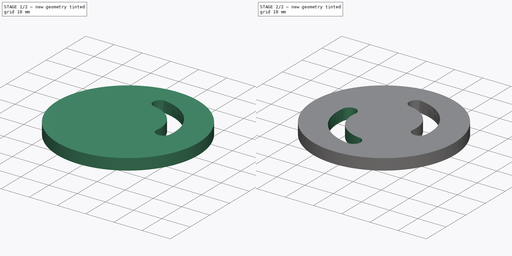
[diagram: build sequence overview — one tinted view per stage of 2, left to right]
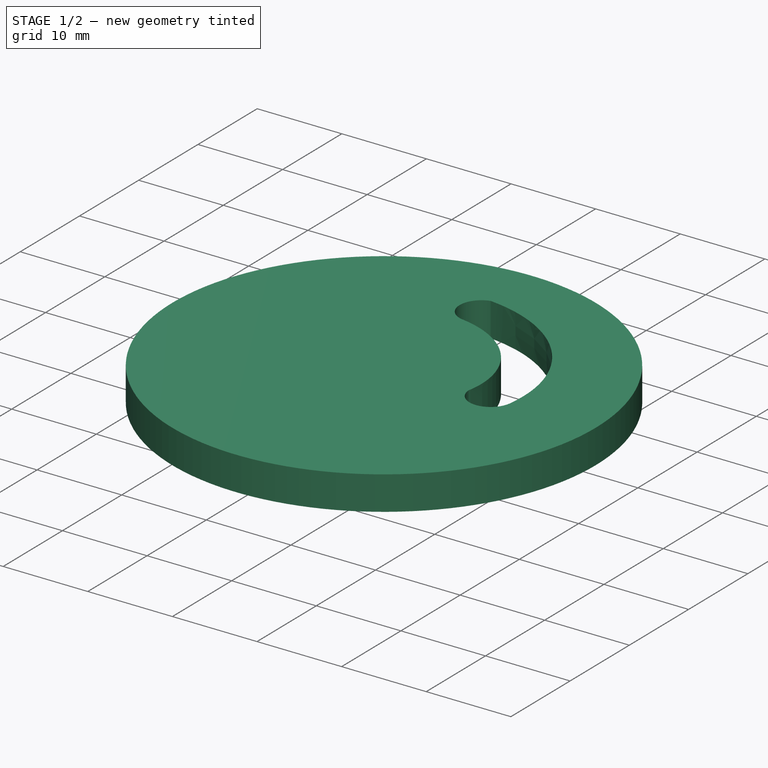
[diagram: stage 1 of 2 — iso view after this stage's code; geometry added in this stage tinted green]
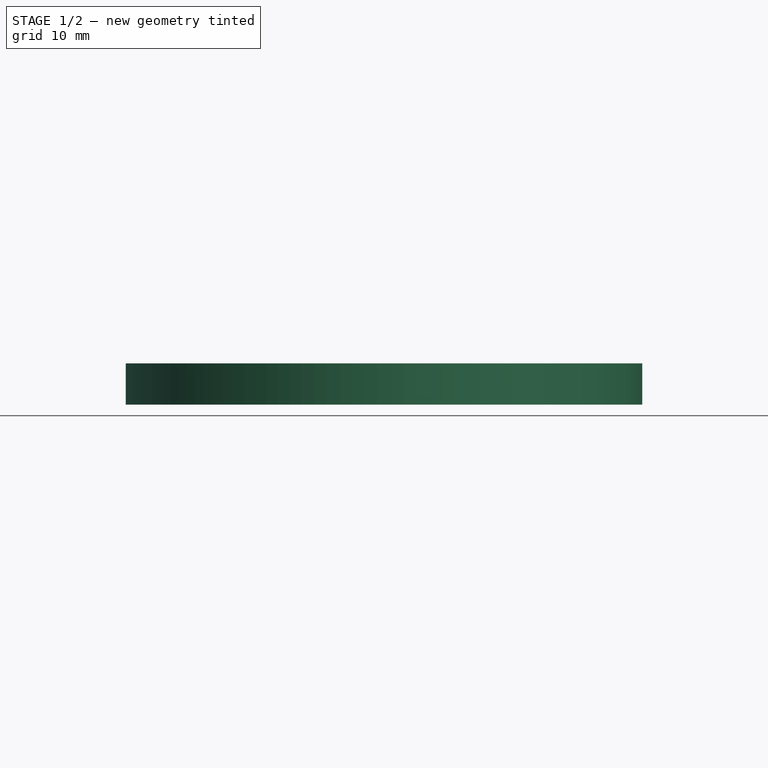
[diagram: stage 1 of 2 — front view after this stage's code; geometry added in this stage tinted green]
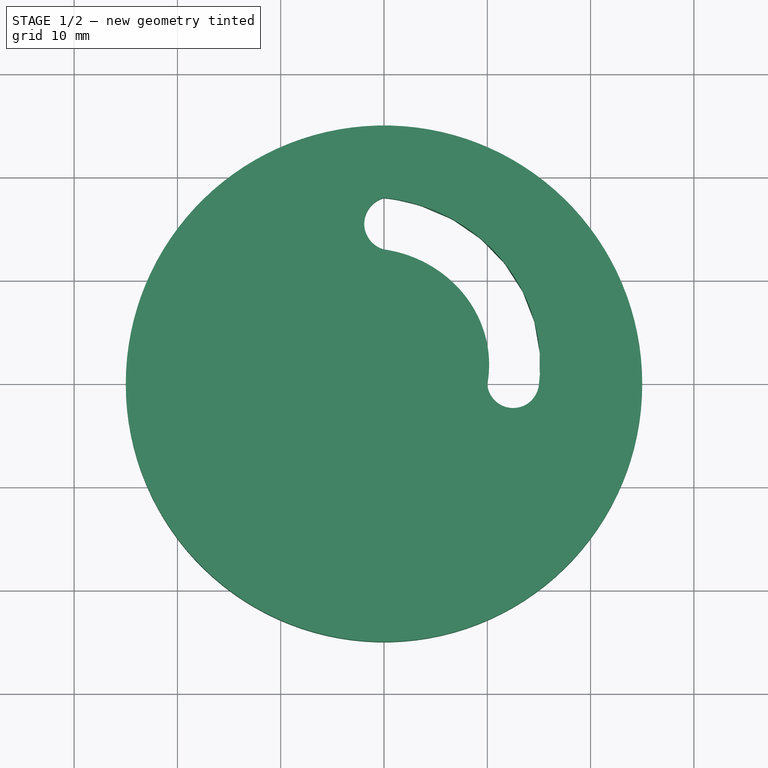
[diagram: stage 1 of 2 — top view after this stage's code; geometry added in this stage tinted green]
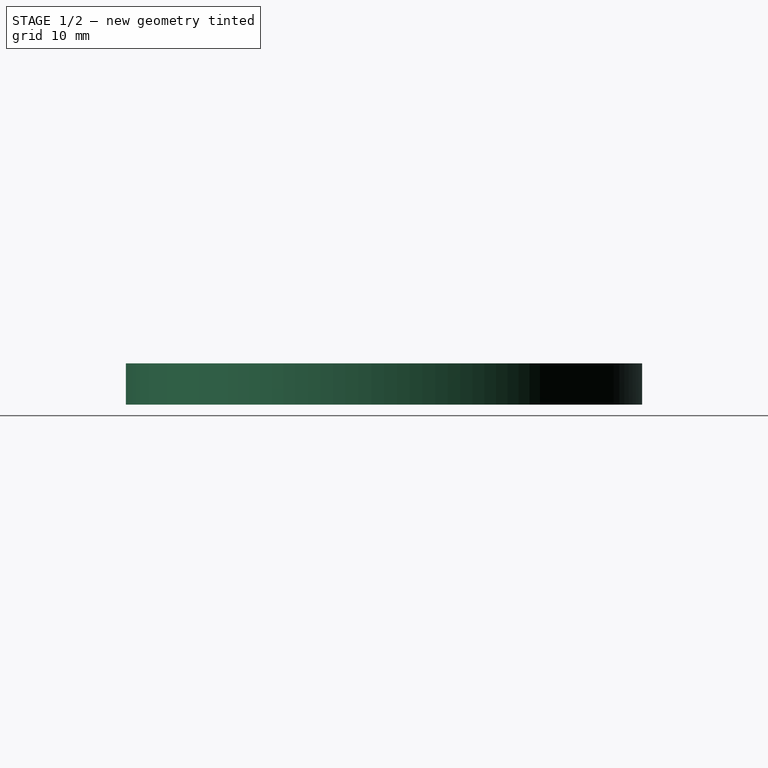
[diagram: stage 1 of 2 — right view after this stage's code; geometry added in this stage tinted green]
FCSTD DOCUMENT  (FreeCAD 0.21R33771 (Git))
Label: CammaRotazioneHalfNut
License: All rights reserved
LicenseURL: http://en.wikipedia.org/wiki/All_rights_reserved
objects: Sketcher::SketchObject×7, Part::Spiral×2, PartDesign::Pocket×2, PartDesign::CoordinateSystem×1, PartDesign::Pad×1, PartDesign::Body×1
note: 17 computed .brp shape members not serialized (recipe doc carries the construction recipe); baked Part::Feature solids carry a one-line shape summary decoded from their .brp

FEATURE [Sketcher::SketchObject] Sketch
  FullyConstrained = true
  MapMode = 5
  Support = -> [XY_Plane]
  sketch-geometry (1):
    g0: Circle CenterX=0 CenterY=0 CenterZ=0 NormalX=0 NormalY=0 NormalZ=1 AngleXU=0 Radius=25
  constraints (2):
    c: Coincident(g0,g-1)
    c: Radius(g0) = 25
FEATURE [Part::Spiral] Spiral  label="Spirale"
  AttacherType = Attacher::AttachEngine3D
  Growth = 16
  Placement = pos=(0,0,0) rot=(0,0,1;3.14159rad)
  Radius = 15
  Rotations = 0.25
  SegmentLength = 1
FEATURE [Part::Spiral] Spiral001  label="Spirale001"
  AttacherType = Attacher::AttachEngine3D
  Growth = 12
  Placement = pos=(0,0,0) rot=(0,0,1;3.14159rad)
  Radius = 10
  Rotations = 0.25
  SegmentLength = 1
FEATURE [Sketcher::SketchObject] Sketch001
  FullyConstrained = false
  Placement = pos=(0,0,0) rot=(0,0,1;3.14159rad)
  sketch-geometry (1):
    g0: BSplineCurve PolesCount=9 KnotsCount=2 Degree=8 IsPeriodic=0
FEATURE [Sketcher::SketchObject] Sketch002
  FullyConstrained = false
  Placement = pos=(0,0,0) rot=(0,0,1;3.14159rad)
  sketch-geometry (1):
    g0: BSplineCurve PolesCount=9 KnotsCount=2 Degree=8 IsPeriodic=0
FEATURE [Sketcher::SketchObject] Sketch003
  FullyConstrained = false
  Placement = pos=(0,0,0) rot=(0,0,1;3.14159rad)
  sketch-geometry (4):
    g0: BSplineCurve PolesCount=9 KnotsCount=2 Degree=8 IsPeriodic=0
    g1: BSplineCurve PolesCount=9 KnotsCount=2 Degree=8 IsPeriodic=0
    g2: ArcOfCircle CenterX=-12.5 CenterY=-0.146281 CenterZ=0 NormalX=0 NormalY=0 NormalZ=1 AngleXU=0 Radius=2.50428 StartAngle=0.0584458 EndAngle=3.08315
    g3: ArcOfCircle CenterX=-0.674462 CenterY=-15.5 CenterZ=0 NormalX=0 NormalY=0 NormalZ=1 AngleXU=0 Radius=2.58938 StartAngle=4.9759 EndAngle=7.59047
  constraints (4):
    c: Coincident(g2,g0)
    c: Coincident(g3,g0)
    c: Coincident(g2,g1)
    c: Coincident(g3,g1)
FEATURE [Sketcher::SketchObject] Sketch004
  FullyConstrained = false
  Placement = pos=(0,0,0) rot=(0,0,1;3.14159rad)
  sketch-geometry (2):
    g0: BSplineCurve PolesCount=9 KnotsCount=2 Degree=8 IsPeriodic=0
    g1: BSplineCurve PolesCount=9 KnotsCount=2 Degree=8 IsPeriodic=0
FEATURE [Sketcher::SketchObject] Sketch005
  FullyConstrained = false
  Placement = pos=(0,0,0) rot=(0,0,1;3.14159rad)
  sketch-geometry (4):
    g0: BSplineCurve PolesCount=9 KnotsCount=2 Degree=8 IsPeriodic=0
    g1: BSplineCurve PolesCount=9 KnotsCount=2 Degree=8 IsPeriodic=0
    g2: ArcOfCircle CenterX=-0.054569 CenterY=15.5 CenterZ=0 NormalX=0 NormalY=0 NormalZ=1 AngleXU=0 Radius=2.5006 StartAngle=1.54897 EndAngle=4.73421
    g3: ArcOfCircle CenterX=12.5 CenterY=-0.199279 CenterZ=0 NormalX=0 NormalY=0 NormalZ=1 AngleXU=0 Radius=2.50793 StartAngle=3.06205 EndAngle=6.36273
  constraints (4):
    c: Coincident(g3,g0)
    c: Coincident(g3,g1)
    c: Coincident(g2,g1)
    c: Coincident(g2,g0)
FEATURE [PartDesign::CoordinateSystem] LCS_CammaHalfNut
  AttacherType = Attacher::AttachEngine3D
FEATURE [PartDesign::Pad] Pad
  Direction = (0,0,1)
  Length = 4
  Length2 = 10
  Profile = -> Sketch
  ReferenceAxis = -> Sketch [N_Axis]
  Type = 0
FEATURE [PartDesign::Pocket] Pocket
  BaseFeature = -> Pad
  Direction = (0,0,-1)
  Length = 5
  Length2 = 5
  Profile = -> Sketch003
  ReferenceAxis = -> Sketch003 [N_Axis]
  Reversed = true
  Type = 0
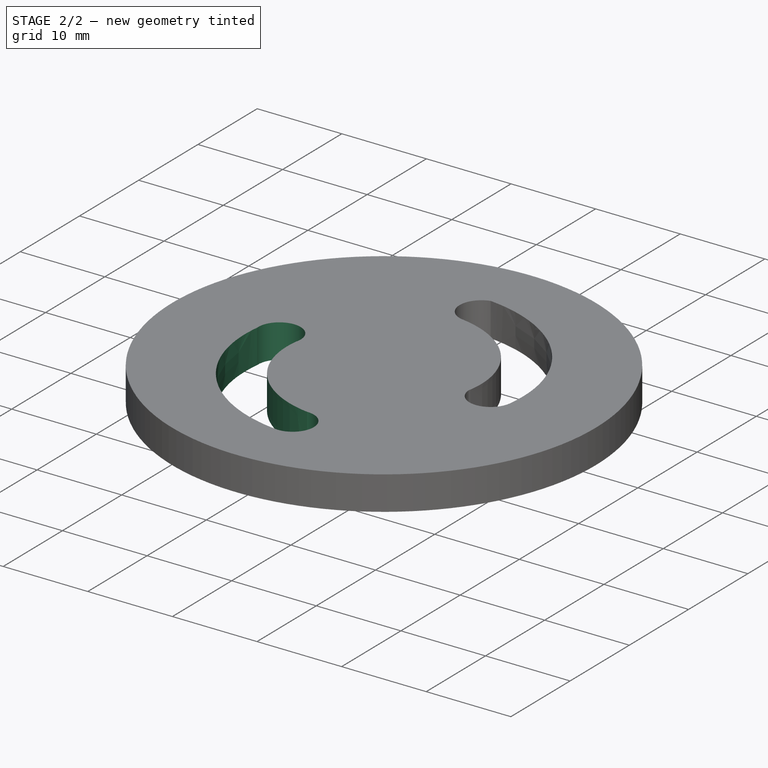
[diagram: stage 2 of 2 — iso view after this stage's code; geometry added in this stage tinted green]
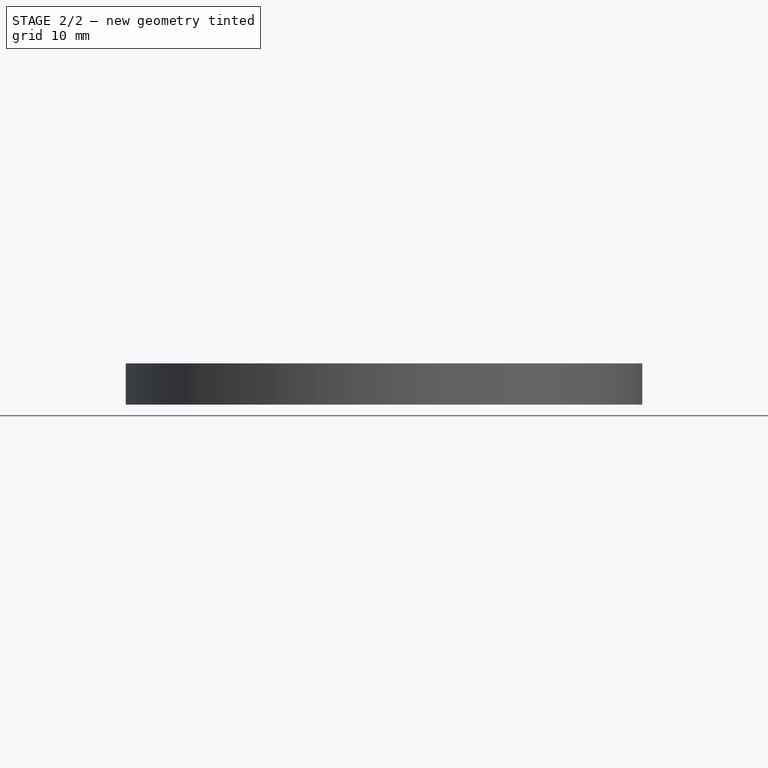
[diagram: stage 2 of 2 — front view after this stage's code; geometry added in this stage tinted green]
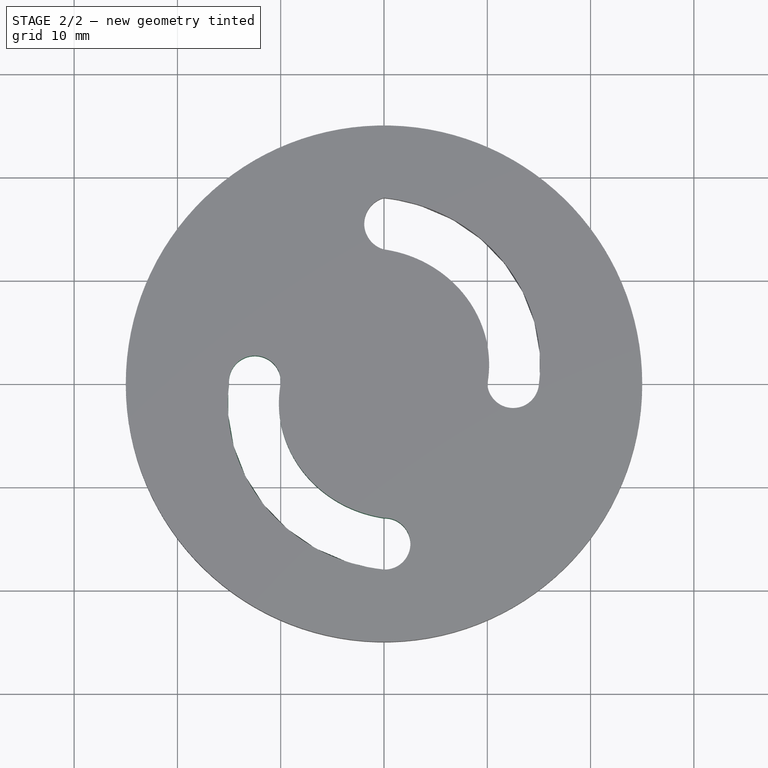
[diagram: stage 2 of 2 — top view after this stage's code; geometry added in this stage tinted green]
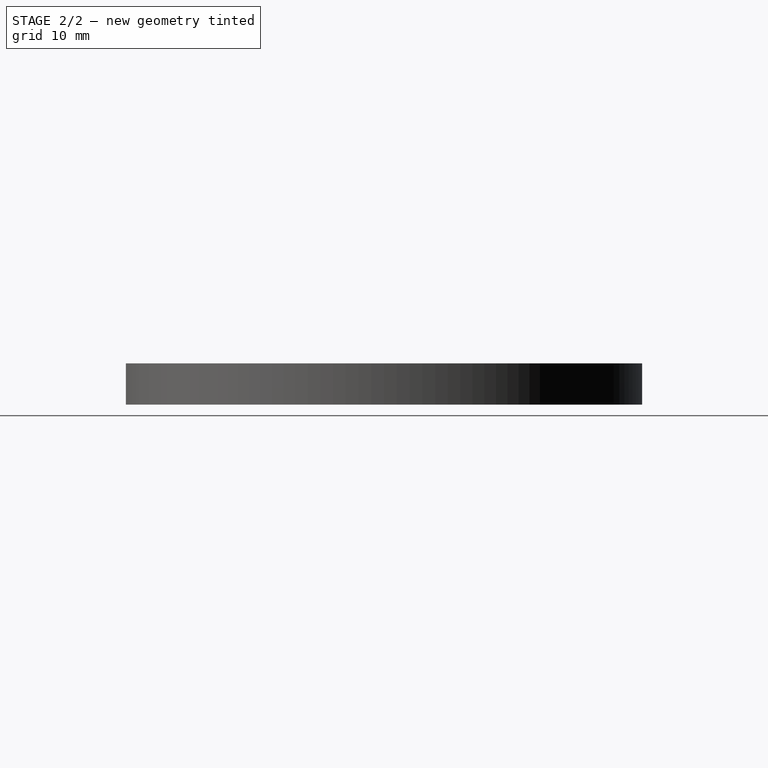
[diagram: stage 2 of 2 — right view after this stage's code; geometry added in this stage tinted green]
FEATURE [PartDesign::Pocket] Pocket001
  BaseFeature = -> Pocket
  Direction = (0,0,-1)
  Length = 5
  Length2 = 5
  Profile = -> Sketch005
  ReferenceAxis = -> Sketch005 [N_Axis]
  Reversed = true
  Type = 0
FEATURE [PartDesign::Body] Body
  Group = -> [Sketch,Pad,Sketch003,Pocket,Sketch005,Pocket001,LCS_CammaHalfNut]
  Origin = -> Origin
  Tip = -> Pocket001
FEATURE [Sketcher::SketchObject] Sketch006
  FullyConstrained = true
  MapMode = 5
  Support = -> [XY_Plane001]
  sketch-geometry (8):
    g0: LineSegment StartX=0 StartY=0 StartZ=0 EndX=50 EndY=0 EndZ=0
    g1: LineSegment StartX=50 StartY=0 StartZ=0 EndX=50 EndY=100 EndZ=0
    g2: LineSegment StartX=50 StartY=100 StartZ=0 EndX=0 EndY=100 EndZ=0
    g3: LineSegment StartX=0 StartY=100 StartZ=0 EndX=0 EndY=0 EndZ=0
    g4: LineSegment StartX=10.25 StartY=80 StartZ=0 EndX=39.25 EndY=80 EndZ=0
    g5: LineSegment StartX=39.25 StartY=80 StartZ=0 EndX=39.25 EndY=20 EndZ=0
    g6: LineSegment StartX=39.25 StartY=20 StartZ=0 EndX=10.25 EndY=20 EndZ=0
    g7: LineSegment StartX=10.25 StartY=20 StartZ=0 EndX=10.25 EndY=80 EndZ=0
  constraints (23):
    c: Coincident(g0,g1)
    c: Coincident(g1,g2)
    c: Coincident(g2,g3)
    c: Coincident(g3,g0)
    c: Horizontal(g0)
    c: Horizontal(g2)
    c: Vertical(g1)
    c: Vertical(g3)
    c: Coincident(g0,g-1)
    c: DistanceX(g0,g0) = 50
    c: DistanceY(g3,g3) = 100
    c: Coincident(g4,g5)
    c: Coincident(g5,g6)
    c: Coincident(g6,g7)
    c: Coincident(g7,g4)
    c: Horizontal(g4)
    c: Horizontal(g6)
    c: Vertical(g5)
    c: Vertical(g7)
    c: DistanceX(g4,g4) = 29
    c: DistanceY(g5,g5) = 60
    c: DistanceX(g0,g6) = 10.25
    c: DistanceY(g0,g6) = 20
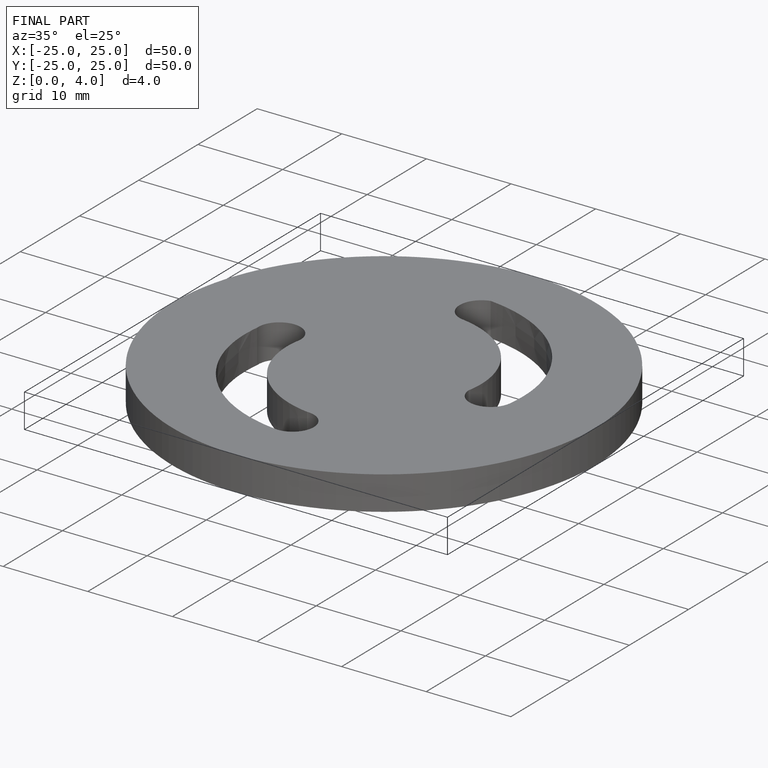
[diagram: finished part — iso view with bounding-box wireframe]
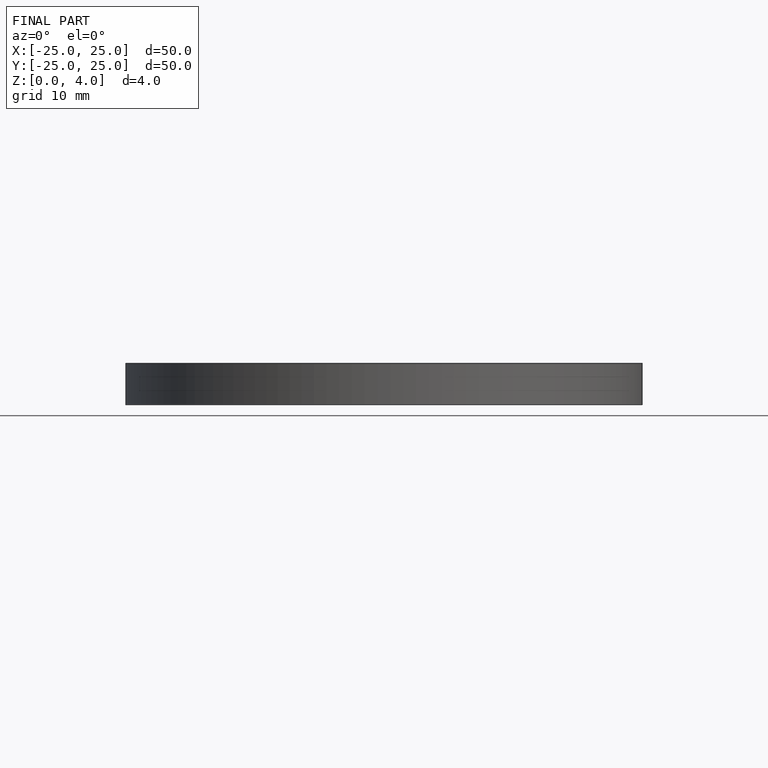
[diagram: finished part — front view with bounding-box wireframe]
